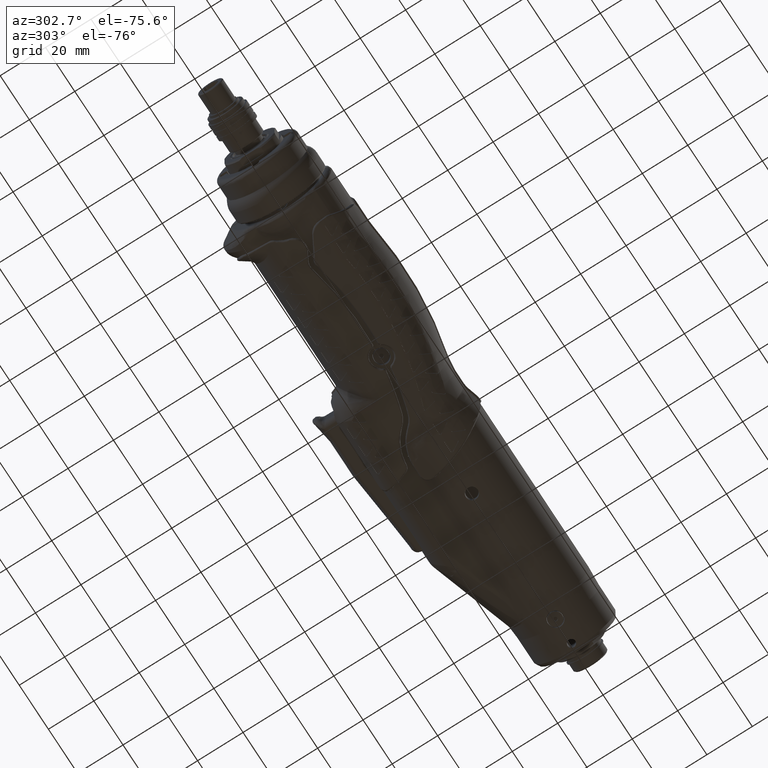
[diagram: clean part render]
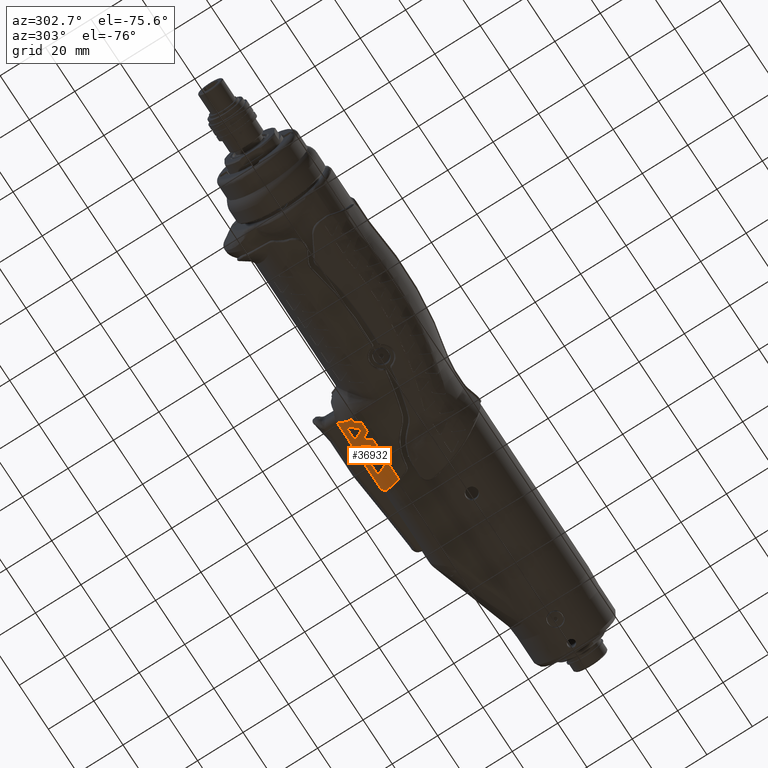
[diagram: same view with one face highlighted and labeled with its STEP entity id]
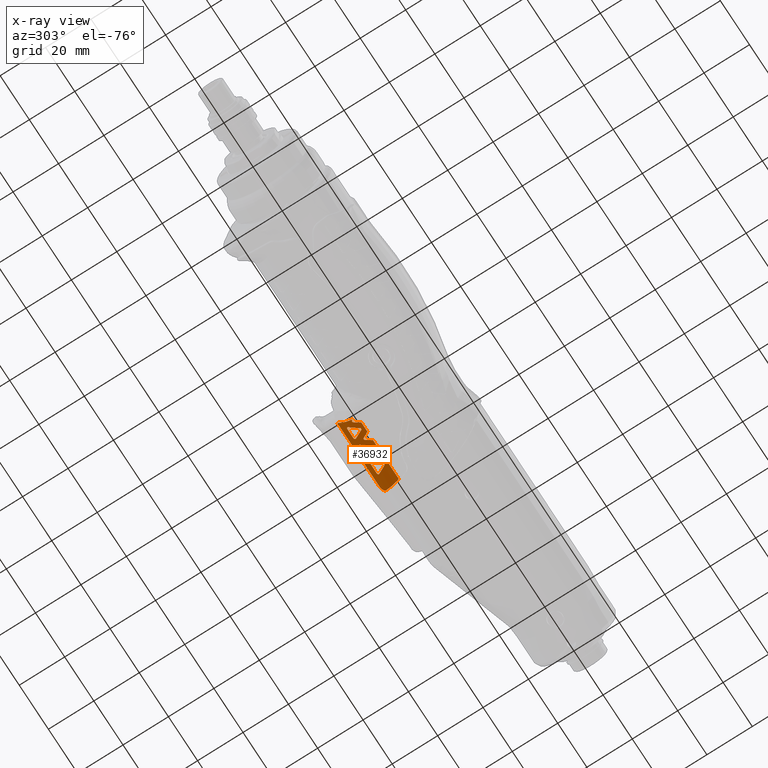
[diagram: x-ray of the same camera — body ghosted, the highlighted face saturated]
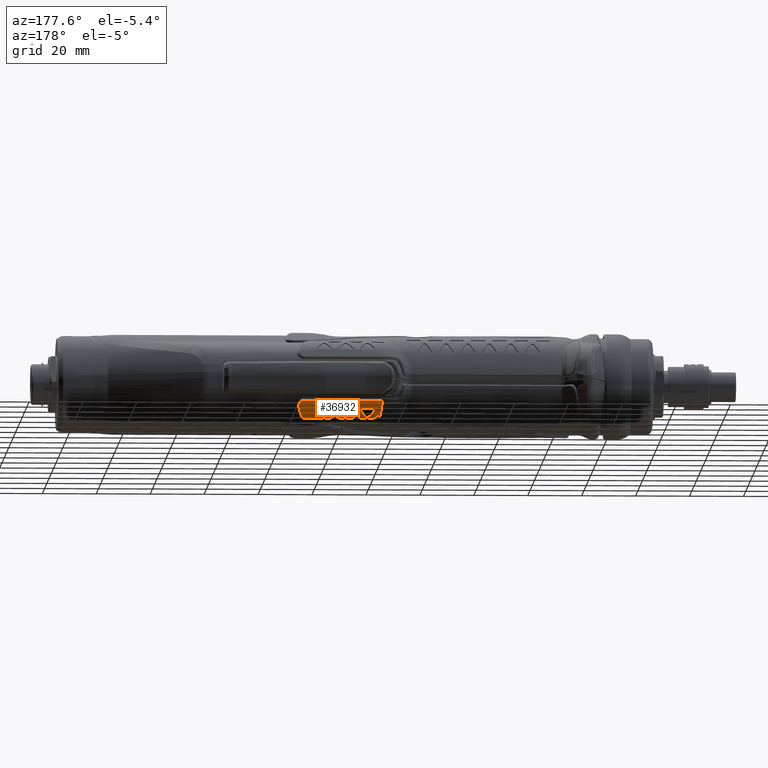
[diagram: same view with one face highlighted and labeled with its STEP entity id]
A machine part, auxiliary view. The second image highlights one B-rep face of the part: STEP entity #36932.
The next image is the same camera in x-ray: the body ghosted, the highlighted face saturated — about 0% of this face is hidden behind the body in this view.
A second angle (auxiliary view) of the same face is appended — the face is thin or edge-on in the first view.
In plain terms, the highlighted cylindrical surface (edge-blend (fillet) strip) has radius 13 mm, axis along (1, 0, 0).
Its self-contained STEP definition (entity closure, byte-faithful):
#98=FACE_BOUND('',#9553,.T.);
#99=FACE_BOUND('',#9554,.T.);
#100=FACE_BOUND('',#9555,.T.);
#1962=LINE('',#65084,#3876);
#1966=LINE('',#65096,#3880);
#1970=LINE('',#65131,#3884);
#1973=LINE('',#65844,#3887);
#1978=LINE('',#66249,#3892);
#1979=LINE('',#66300,#3893);
#1980=LINE('',#66351,#3894);
#3876=VECTOR('',#45804,10.);
#3880=VECTOR('',#45812,10.);
#3884=VECTOR('',#45844,10.);
#3887=VECTOR('',#45915,10.);
#3892=VECTOR('',#45962,10.);
#3893=VECTOR('',#45967,10.);
#3894=VECTOR('',#45972,10.);
#5154=ELLIPSE('',#39985,15.0111069989488,13.0000000000161);
#5155=ELLIPSE('',#39986,15.0111069989488,13.0000000000161);
#5156=ELLIPSE('',#39987,15.0111069989487,13.0000000000161);
#5157=ELLIPSE('',#39988,15.0111069989487,13.0000000000161);
#5158=ELLIPSE('',#39989,15.0111069989487,13.0000000000161);
#5159=ELLIPSE('',#39990,15.0111069989487,13.0000000000161);
#5160=ELLIPSE('',#39991,15.0111069989488,13.0000000000161);
#5161=ELLIPSE('',#39992,15.0111069989488,13.0000000000161);
#5162=ELLIPSE('',#39993,15.0111069989488,13.0000000000161);
#5163=ELLIPSE('',#39994,15.0111069989488,13.0000000000161);
#5164=ELLIPSE('',#39995,15.0111069989488,13.0000000000161);
#5165=ELLIPSE('',#39996,15.0111069989488,13.0000000000161);
#5713=CYLINDRICAL_SURFACE('',#39984,13.0000000000161);
#7188=FACE_OUTER_BOUND('',#9552,.T.);
#9552=EDGE_LOOP('',(#28286,#28287,#28288,#28289,#28290,#28291,#28292,#28293,
#28294,#28295,#28296,#28297,#28298,#28299,#28300,#28301));
#9553=EDGE_LOOP('',(#28302,#28303,#28304,#28305,#28306,#28307));
#9554=EDGE_LOOP('',(#28308,#28309,#28310,#28311,#28312,#28313));
#9555=EDGE_LOOP('',(#28314,#28315,#28316,#28317,#28318,#28319));
#12707=B_SPLINE_CURVE_WITH_KNOTS('',3,(#65765,#65766,#65767,#65768),
 .UNSPECIFIED.,.F.,.F.,(4,4),(-0.742252809148825,0.),.UNSPECIFIED.);
#12710=B_SPLINE_CURVE_WITH_KNOTS('',3,(#65834,#65835,#65836,#65837,#65838,
#65839,#65840,#65841),.UNSPECIFIED.,.F.,.F.,(4,1,1,1,1,4),(0.,0.120436562590243,
0.240873125180485,0.301091406475606,0.361309687770728,0.421527969065849),
 .UNSPECIFIED.);
#12722=B_SPLINE_CURVE_WITH_KNOTS('',3,(#66171,#66172,#66173,#66174,#66175,
#66176,#66177,#66178,#66179,#66180,#66181,#66182,#66183,#66184,#66185),
 .UNSPECIFIED.,.F.,.F.,(4,2,2,3,2,2,4),(-0.0518851692637011,-0.0375597601137826,
-0.0187798800568914,0.,0.0187798800568905,0.0375597601137809,0.0518851692682201),
 .UNSPECIFIED.);
#12723=B_SPLINE_CURVE_WITH_KNOTS('',3,(#66190,#66191,#66192,#66193,#66194,
#66195,#66196,#66197,#66198,#66199,#66200,#66201,#66202,#66203,#66204),
 .UNSPECIFIED.,.F.,.F.,(4,2,2,3,2,2,4),(-0.0518851692636985,-0.0375597601137826,
-0.0187798800568913,0.,0.0187798800568913,0.0375597601137826,0.0518851692682225),
 .UNSPECIFIED.);
#12724=B_SPLINE_CURVE_WITH_KNOTS('',3,(#66207,#66208,#66209,#66210,#66211,
#66212),.UNSPECIFIED.,.F.,.F.,(4,2,4),(0.0979578196995392,0.226581693227468,
0.37014594472201),.UNSPECIFIED.);
#12725=B_SPLINE_CURVE_WITH_KNOTS('',3,(#66216,#66217,#66218,#66219,#66220,
#66221,#66222,#66223,#66224,#66225,#66226,#66227,#66228,#66229,#66230),
 .UNSPECIFIED.,.F.,.F.,(4,2,2,3,2,2,4),(-0.0518851692637037,-0.0375597601137809,
-0.0187798800568905,0.,0.0187798800568905,0.0375597601137809,0.0518851692682212),
 .UNSPECIFIED.);
#12726=B_SPLINE_CURVE_WITH_KNOTS('',3,(#66234,#66235,#66236,#66237,#66238,
#66239,#66240,#66241,#66242,#66243,#66244,#66245,#66246,#66247),
 .UNSPECIFIED.,.F.,.F.,(4,2,2,2,2,2,4),(-0.119695030585074,-0.112699241283489,
-0.0881696896335143,-0.0628027498124121,-0.03743580999131,-0.018717904995655,
0.),.UNSPECIFIED.);
#12727=B_SPLINE_CURVE_WITH_KNOTS('',3,(#66251,#66252,#66253,#66254,#66255,
#66256,#66257,#66258,#66259,#66260,#66261,#66262,#66263,#66264),
 .UNSPECIFIED.,.F.,.F.,(4,2,2,2,2,2,4),(0.,0.018717904995655,0.03743580999131,
0.0628027498124124,0.0881696896335149,0.11269924128349,0.119695030585074),
 .UNSPECIFIED.);
#12728=B_SPLINE_CURVE_WITH_KNOTS('',3,(#66268,#66269,#66270,#66271,#66272,
#66273,#66274,#66275,#66276,#66277,#66278,#66279,#66280,#66281),
 .UNSPECIFIED.,.F.,.F.,(4,2,2,2,2,2,4),(0.104794751886867,0.118534869095912,
0.137294529411322,0.156054189726731,0.174813850042139,0.193573510357547,
0.207313627566592),.UNSPECIFIED.);
#12729=B_SPLINE_CURVE_WITH_KNOTS('',3,(#66285,#66286,#66287,#66288,#66289,
#66290,#66291,#66292,#66293,#66294,#66295,#66296,#66297,#66298),
 .UNSPECIFIED.,.F.,.F.,(4,2,2,2,2,2,4),(-0.119695030585073,-0.112699241283489,
-0.0881696896335143,-0.0628027498124121,-0.03743580999131,-0.018717904995655,
0.),.UNSPECIFIED.);
#12730=B_SPLINE_CURVE_WITH_KNOTS('',3,(#66302,#66303,#66304,#66305,#66306,
#66307,#66308,#66309,#66310,#66311,#66312,#66313,#66314,#66315),
 .UNSPECIFIED.,.F.,.F.,(4,2,2,2,2,2,4),(0.,0.018717904995655,0.03743580999131,
0.0628027498124124,0.0881696896335149,0.11269924128349,0.119695030585075),
 .UNSPECIFIED.);
#12731=B_SPLINE_CURVE_WITH_KNOTS('',3,(#66319,#66320,#66321,#66322,#66323,
#66324,#66325,#66326,#66327,#66328,#66329,#66330,#66331,#66332),
 .UNSPECIFIED.,.F.,.F.,(4,2,2,2,2,2,4),(0.104791928479354,0.118532045688397,
0.137291706003806,0.156051366319215,0.174811026634624,0.193570686950033,
0.207310804159078),.UNSPECIFIED.);
#12732=B_SPLINE_CURVE_WITH_KNOTS('',3,(#66336,#66337,#66338,#66339,#66340,
#66341,#66342,#66343,#66344,#66345,#66346,#66347,#66348,#66349),
 .UNSPECIFIED.,.F.,.F.,(4,2,2,2,2,2,4),(-0.119695030585075,-0.112699241283489,
-0.0881696896335143,-0.0628027498124121,-0.03743580999131,-0.018717904995655,
0.),.UNSPECIFIED.);
#12733=B_SPLINE_CURVE_WITH_KNOTS('',3,(#66353,#66354,#66355,#66356,#66357,
#66358,#66359,#66360,#66361,#66362,#66363,#66364,#66365,#66366),
 .UNSPECIFIED.,.F.,.F.,(4,2,2,2,2,2,4),(0.,0.0187179049956548,0.0374358099913096,
0.0628027498124124,0.0881696896335152,0.11269924128349,0.119695030585074),
 .UNSPECIFIED.);
#12734=B_SPLINE_CURVE_WITH_KNOTS('',3,(#66370,#66371,#66372,#66373,#66374,
#66375,#66376,#66377,#66378,#66379,#66380,#66381,#66382,#66383),
 .UNSPECIFIED.,.F.,.F.,(4,2,2,2,2,2,4),(0.104791928479352,0.118532045688396,
0.137291706003805,0.156051366319214,0.174811026634623,0.193570686950032,
0.207310804159076),.UNSPECIFIED.);
#15820=VERTEX_POINT('',#65081);
#15821=VERTEX_POINT('',#65083);
#15826=VERTEX_POINT('',#65093);
#15827=VERTEX_POINT('',#65095);
#15843=VERTEX_POINT('',#65128);
#15844=VERTEX_POINT('',#65130);
#15855=VERTEX_POINT('',#65764);
#15858=VERTEX_POINT('',#65824);
#15859=VERTEX_POINT('',#65843);
#15872=VERTEX_POINT('',#66168);
#15873=VERTEX_POINT('',#66170);
#15874=VERTEX_POINT('',#66187);
#15875=VERTEX_POINT('',#66189);
#15876=VERTEX_POINT('',#66205);
#15877=VERTEX_POINT('',#66213);
#15878=VERTEX_POINT('',#66215);
#15879=VERTEX_POINT('',#66232);
#15880=VERTEX_POINT('',#66233);
#15881=VERTEX_POINT('',#66248);
#15882=VERTEX_POINT('',#66250);
#15883=VERTEX_POINT('',#66265);
#15884=VERTEX_POINT('',#66267);
#15885=VERTEX_POINT('',#66283);
#15886=VERTEX_POINT('',#66284);
#15887=VERTEX_POINT('',#66299);
#15888=VERTEX_POINT('',#66301);
#15889=VERTEX_POINT('',#66316);
#15890=VERTEX_POINT('',#66318);
#15891=VERTEX_POINT('',#66334);
#15892=VERTEX_POINT('',#66335);
#15893=VERTEX_POINT('',#66350);
#15894=VERTEX_POINT('',#66352);
#15895=VERTEX_POINT('',#66367);
#15896=VERTEX_POINT('',#66369);
#20289=EDGE_CURVE('',#15820,#15821,#1962,.T.);
#20295=EDGE_CURVE('',#15826,#15827,#1966,.T.);
#20313=EDGE_CURVE('',#15843,#15844,#1970,.T.);
#20349=EDGE_CURVE('',#15827,#15855,#12707,.T.);
#20354=EDGE_CURVE('',#15855,#15858,#12710,.T.);
#20355=EDGE_CURVE('',#15858,#15859,#1973,.T.);
#20382=EDGE_CURVE('',#15820,#15872,#5154,.T.);
#20383=EDGE_CURVE('',#15872,#15873,#12722,.T.);
#20384=EDGE_CURVE('',#15873,#15844,#5155,.T.);
#20385=EDGE_CURVE('',#15843,#15874,#5156,.T.);
#20386=EDGE_CURVE('',#15874,#15875,#12723,.T.);
#20387=EDGE_CURVE('',#15875,#15876,#5157,.T.);
#20388=EDGE_CURVE('',#15859,#15876,#12724,.T.);
#20389=EDGE_CURVE('',#15826,#15877,#5158,.T.);
#20390=EDGE_CURVE('',#15877,#15878,#12725,.T.);
#20391=EDGE_CURVE('',#15878,#15821,#5159,.T.);
#20392=EDGE_CURVE('',#15879,#15880,#12726,.T.);
#20393=EDGE_CURVE('',#15880,#15881,#1978,.T.);
#20394=EDGE_CURVE('',#15881,#15882,#12727,.T.);
#20395=EDGE_CURVE('',#15882,#15883,#5160,.T.);
#20396=EDGE_CURVE('',#15883,#15884,#12728,.T.);
#20397=EDGE_CURVE('',#15884,#15879,#5161,.T.);
#20398=EDGE_CURVE('',#15885,#15886,#12729,.T.);
#20399=EDGE_CURVE('',#15886,#15887,#1979,.T.);
#20400=EDGE_CURVE('',#15887,#15888,#12730,.T.);
#20401=EDGE_CURVE('',#15888,#15889,#5162,.T.);
#20402=EDGE_CURVE('',#15889,#15890,#12731,.T.);
#20403=EDGE_CURVE('',#15890,#15885,#5163,.T.);
#20404=EDGE_CURVE('',#15891,#15892,#12732,.T.);
#20405=EDGE_CURVE('',#15892,#15893,#1980,.T.);
#20406=EDGE_CURVE('',#15893,#15894,#12733,.T.);
#20407=EDGE_CURVE('',#15894,#15895,#5164,.T.);
#20408=EDGE_CURVE('',#15895,#15896,#12734,.T.);
#20409=EDGE_CURVE('',#15896,#15891,#5165,.T.);
#28286=ORIENTED_EDGE('',*,*,#20382,.T.);
#28287=ORIENTED_EDGE('',*,*,#20383,.T.);
#28288=ORIENTED_EDGE('',*,*,#20384,.T.);
#28289=ORIENTED_EDGE('',*,*,#20313,.F.);
#28290=ORIENTED_EDGE('',*,*,#20385,.T.);
#28291=ORIENTED_EDGE('',*,*,#20386,.T.);
#28292=ORIENTED_EDGE('',*,*,#20387,.T.);
#28293=ORIENTED_EDGE('',*,*,#20388,.F.);
#28294=ORIENTED_EDGE('',*,*,#20355,.F.);
#28295=ORIENTED_EDGE('',*,*,#20354,.F.);
#28296=ORIENTED_EDGE('',*,*,#20349,.F.);
#28297=ORIENTED_EDGE('',*,*,#20295,.F.);
#28298=ORIENTED_EDGE('',*,*,#20389,.T.);
#28299=ORIENTED_EDGE('',*,*,#20390,.T.);
#28300=ORIENTED_EDGE('',*,*,#20391,.T.);
#28301=ORIENTED_EDGE('',*,*,#20289,.F.);
#28302=ORIENTED_EDGE('',*,*,#20392,.T.);
#28303=ORIENTED_EDGE('',*,*,#20393,.T.);
#28304=ORIENTED_EDGE('',*,*,#20394,.T.);
#28305=ORIENTED_EDGE('',*,*,#20395,.T.);
#28306=ORIENTED_EDGE('',*,*,#20396,.T.);
#28307=ORIENTED_EDGE('',*,*,#20397,.T.);
#28308=ORIENTED_EDGE('',*,*,#20398,.T.);
#28309=ORIENTED_EDGE('',*,*,#20399,.T.);
#28310=ORIENTED_EDGE('',*,*,#20400,.T.);
#28311=ORIENTED_EDGE('',*,*,#20401,.T.);
#28312=ORIENTED_EDGE('',*,*,#20402,.T.);
#28313=ORIENTED_EDGE('',*,*,#20403,.T.);
#28314=ORIENTED_EDGE('',*,*,#20404,.T.);
#28315=ORIENTED_EDGE('',*,*,#20405,.T.);
#28316=ORIENTED_EDGE('',*,*,#20406,.T.);
#28317=ORIENTED_EDGE('',*,*,#20407,.T.);
#28318=ORIENTED_EDGE('',*,*,#20408,.T.);
#28319=ORIENTED_EDGE('',*,*,#20409,.T.);
#36932=ADVANCED_FACE('',(#7188,#98,#99,#100),#5713,.T.);
#39984=AXIS2_PLACEMENT_3D('',#66167,#45948,#45949);
#39985=AXIS2_PLACEMENT_3D('',#66169,#45950,#45951);
#39986=AXIS2_PLACEMENT_3D('',#66186,#45952,#45953);
#39987=AXIS2_PLACEMENT_3D('',#66188,#45954,#45955);
#39988=AXIS2_PLACEMENT_3D('',#66206,#45956,#45957);
#39989=AXIS2_PLACEMENT_3D('',#66214,#45958,#45959);
#39990=AXIS2_PLACEMENT_3D('',#66231,#45960,#45961);
#39991=AXIS2_PLACEMENT_3D('',#66266,#45963,#45964);
#39992=AXIS2_PLACEMENT_3D('',#66282,#45965,#45966);
#39993=AXIS2_PLACEMENT_3D('',#66317,#45968,#45969);
#39994=AXIS2_PLACEMENT_3D('',#66333,#45970,#45971);
#39995=AXIS2_PLACEMENT_3D('',#66368,#45973,#45974);
#39996=AXIS2_PLACEMENT_3D('',#66384,#45975,#45976);
#45804=DIRECTION('',(1.,0.,0.));
#45812=DIRECTION('',(1.,0.,0.));
#45844=DIRECTION('',(1.,0.,0.));
#45915=DIRECTION('',(-1.,0.,0.));
#45948=DIRECTION('center_axis',(1.,0.,0.));
#45949=DIRECTION('ref_axis',(0.,-0.207911690853884,0.978147600726127));
#45950=DIRECTION('center_axis',(0.866025403784444,0.499999999999991,0.));
#45951=DIRECTION('ref_axis',(0.499999999999991,-0.866025403784444,-3.69800516611769E-17));
#45952=DIRECTION('center_axis',(-0.866025403784443,0.499999999999992,0.));
#45953=DIRECTION('ref_axis',(-0.499999999999992,-0.866025403784443,-3.69800516611768E-17));
#45954=DIRECTION('center_axis',(0.86602540378445,0.499999999999981,0.));
#45955=DIRECTION('ref_axis',(0.499999999999981,-0.86602540378445,-3.69800516611771E-17));
#45956=DIRECTION('center_axis',(-0.866025403784447,0.499999999999986,0.));
#45957=DIRECTION('ref_axis',(-0.499999999999986,-0.866025403784447,-3.6980051661177E-17));
#45958=DIRECTION('center_axis',(0.866025403784448,0.499999999999984,0.));
#45959=DIRECTION('ref_axis',(0.499999999999984,-0.866025403784448,-3.6980051661177E-17));
#45960=DIRECTION('center_axis',(-0.866025403784448,0.499999999999984,0.));
#45961=DIRECTION('ref_axis',(-0.499999999999984,-0.866025403784448,-3.6980051661177E-17));
#45962=DIRECTION('',(-1.,0.,0.));
#45963=DIRECTION('center_axis',(-0.866025403784442,-0.499999999999994,0.));
#45964=DIRECTION('ref_axis',(0.499999999999994,-0.866025403784442,1.47920206644707E-16));
#45965=DIRECTION('center_axis',(0.866025403784443,-0.499999999999992,0.));
#45966=DIRECTION('ref_axis',(-0.499999999999992,-0.866025403784443,-3.69800516611768E-17));
#45967=DIRECTION('',(-1.,0.,0.));
#45968=DIRECTION('center_axis',(-0.866025403784441,-0.499999999999996,0.));
#45969=DIRECTION('ref_axis',(0.499999999999996,-0.866025403784441,-3.69800516611767E-17));
#45970=DIRECTION('center_axis',(0.866025403784443,-0.499999999999992,0.));
#45971=DIRECTION('ref_axis',(-0.499999999999992,-0.866025403784443,-3.69800516611768E-17));
#45972=DIRECTION('',(-1.,0.,0.));
#45973=DIRECTION('center_axis',(-0.866025403784443,-0.499999999999992,0.));
#45974=DIRECTION('ref_axis',(0.499999999999992,-0.866025403784443,-3.69800516611768E-17));
#45975=DIRECTION('center_axis',(0.866025403784441,-0.499999999999996,0.));
#45976=DIRECTION('ref_axis',(-0.499999999999996,-0.866025403784441,-3.69800516611767E-17));
#65081=CARTESIAN_POINT('',(93.9193867086727,20.3716661877115,-14.21871988161));
#65083=CARTESIAN_POINT('',(98.0806132913292,20.3716661877115,-14.21871988161));
#65084=CARTESIAN_POINT('',(48.,20.3716661877115,-14.21871988161));
#65093=CARTESIAN_POINT('',(101.919386708673,20.3716661877115,-14.21871988161));
#65095=CARTESIAN_POINT('',(111.614878326556,20.3716661877086,-14.2187198815942));
#65096=CARTESIAN_POINT('',(48.,20.3716661877115,-14.21871988161));
#65128=CARTESIAN_POINT('',(85.9193867086727,20.3716661877115,-14.21871988161));
#65130=CARTESIAN_POINT('',(90.0806132913292,20.3716661877115,-14.21871988161));
#65131=CARTESIAN_POINT('',(48.,20.3716661877115,-14.21871988161));
#65764=CARTESIAN_POINT('',(113.496403439984,26.8830877987711,-10.6732515610253));
#65765=CARTESIAN_POINT('Ctrl Pts',(111.614878326556,20.371666187709,-14.2187198815941));
#65766=CARTESIAN_POINT('Ctrl Pts',(112.434368077911,22.7656634969356,-13.709860044805));
#65767=CARTESIAN_POINT('Ctrl Pts',(113.068886919676,25.0808276423121,-12.4841242314573));
#65768=CARTESIAN_POINT('Ctrl Pts',(113.496403439984,26.8830877987711,-10.6732515610253));
#65824=CARTESIAN_POINT('',(111.47222585727,28.8366253597478,-8.15712252876704));
#65834=CARTESIAN_POINT('Ctrl Pts',(113.496403439984,26.8830877987711,-10.6732515610253));
#65835=CARTESIAN_POINT('Ctrl Pts',(113.565771476752,27.1755191853039,-10.379422723967));
#65836=CARTESIAN_POINT('Ctrl Pts',(113.601045481496,27.7489530594298,-9.74611860325655));
#65837=CARTESIAN_POINT('Ctrl Pts',(113.220788738242,28.347028950615,-8.93083823272152));
#65838=CARTESIAN_POINT('Ctrl Pts',(112.625552890721,28.6644128862635,-8.44081573615646));
#65839=CARTESIAN_POINT('Ctrl Pts',(112.075437650129,28.806693397243,-8.20805495137111));
#65840=CARTESIAN_POINT('Ctrl Pts',(111.672953461587,28.8366253597478,-8.15712252876711));
#65841=CARTESIAN_POINT('Ctrl Pts',(111.47222585727,28.8366253597478,-8.15712252876711));
#65843=CARTESIAN_POINT('',(82.5645679928106,28.8366253597478,-8.15712252876704));
#65844=CARTESIAN_POINT('',(48.,28.8366253597478,-8.15712252876704));
#66167=CARTESIAN_POINT('Origin',(48.,17.6688142066043,-1.5028010721389));
#66168=CARTESIAN_POINT('',(92.4330127018932,22.9461414865034,-13.3834499088503));
#66169=CARTESIAN_POINT('Origin',(95.4798790275446,17.6688142066043,-1.5028010721389));
#66170=CARTESIAN_POINT('',(91.5669872981087,22.9461414865034,-13.3834499088503));
#66171=CARTESIAN_POINT('Ctrl Pts',(92.4330127018932,22.9461414865034,-13.3834499088503));
#66172=CARTESIAN_POINT('Ctrl Pts',(92.4094303620645,22.9869872972481,-13.3653063954551));
#66173=CARTESIAN_POINT('Ctrl Pts',(92.3800220239736,23.0242514592084,-13.3484964524194));
#66174=CARTESIAN_POINT('Ctrl Pts',(92.3043235695296,23.0973267455882,-13.3152236140067));
#66175=CARTESIAN_POINT('Ctrl Pts',(92.2497129754869,23.1342114413102,-13.2981466146282));
#66176=CARTESIAN_POINT('Ctrl Pts',(92.1288653570798,23.1836407868648,-13.2751173775063));
#66177=CARTESIAN_POINT('Ctrl Pts',(92.0625996001906,23.1961414865034,-13.2692216468635));
#66178=CARTESIAN_POINT('Ctrl Pts',(92.000000000001,23.1961414865034,-13.2692216468635));
#66179=CARTESIAN_POINT('Ctrl Pts',(91.9374003998113,23.1961414865034,-13.2692216468635));
#66180=CARTESIAN_POINT('Ctrl Pts',(91.8711346429222,23.1836407868648,-13.2751173775063));
#66181=CARTESIAN_POINT('Ctrl Pts',(91.750287024515,23.1342114413102,-13.2981466146282));
#66182=CARTESIAN_POINT('Ctrl Pts',(91.6956764304723,23.0973267455882,-13.3152236140067));
#66183=CARTESIAN_POINT('Ctrl Pts',(91.619977976018,23.0242514591984,-13.348496452424));
#66184=CARTESIAN_POINT('Ctrl Pts',(91.590569637947,22.9869872972647,-13.3653063954477));
#66185=CARTESIAN_POINT('Ctrl Pts',(91.5669872981087,22.9461414865034,-13.3834499088503));
#66186=CARTESIAN_POINT('Origin',(88.5201209724573,17.6688142066043,-1.5028010721389));
#66187=CARTESIAN_POINT('',(84.4330127018932,22.9461414865034,-13.3834499088503));
#66188=CARTESIAN_POINT('Origin',(87.4798790275446,17.6688142066043,-1.5028010721389));
#66189=CARTESIAN_POINT('',(83.5669872981087,22.9461414865034,-13.3834499088503));
#66190=CARTESIAN_POINT('Ctrl Pts',(84.4330127018932,22.9461414865034,-13.3834499088503));
#66191=CARTESIAN_POINT('Ctrl Pts',(84.4094303620645,22.9869872972481,-13.3653063954551));
#66192=CARTESIAN_POINT('Ctrl Pts',(84.3800220239736,23.0242514592084,-13.3484964524194));
#66193=CARTESIAN_POINT('Ctrl Pts',(84.3043235695296,23.0973267455882,-13.3152236140067));
#66194=CARTESIAN_POINT('Ctrl Pts',(84.2497129754869,23.1342114413102,-13.2981466146282));
#66195=CARTESIAN_POINT('Ctrl Pts',(84.1288653570797,23.1836407868648,-13.2751173775063));
#66196=CARTESIAN_POINT('Ctrl Pts',(84.0625996001906,23.1961414865034,-13.2692216468635));
#66197=CARTESIAN_POINT('Ctrl Pts',(84.000000000001,23.1961414865034,-13.2692216468635));
#66198=CARTESIAN_POINT('Ctrl Pts',(83.9374003998113,23.1961414865034,-13.2692216468635));
#66199=CARTESIAN_POINT('Ctrl Pts',(83.8711346429222,23.1836407868648,-13.2751173775063));
#66200=CARTESIAN_POINT('Ctrl Pts',(83.750287024515,23.1342114413102,-13.2981466146282));
#66201=CARTESIAN_POINT('Ctrl Pts',(83.6956764304723,23.0973267455882,-13.3152236140067));
#66202=CARTESIAN_POINT('Ctrl Pts',(83.619977976018,23.0242514591984,-13.348496452424));
#66203=CARTESIAN_POINT('Ctrl Pts',(83.590569637947,22.9869872972647,-13.3653063954477));
#66204=CARTESIAN_POINT('Ctrl Pts',(83.5669872981087,22.9461414865034,-13.3834499088503));
#66205=CARTESIAN_POINT('',(83.3075279534903,22.4967447191388,-13.5730573646343));
#66206=CARTESIAN_POINT('Origin',(80.5201209724573,17.6688142066043,-1.5028010721389));
#66207=CARTESIAN_POINT('Ctrl Pts',(82.5645679928108,28.8366253597479,-8.15712252876701));
#66208=CARTESIAN_POINT('Ctrl Pts',(82.7067934257745,28.1638627890443,-9.28620614600599));
#66209=CARTESIAN_POINT('Ctrl Pts',(82.8538245946699,27.322777222641,-10.3096697481084));
#66210=CARTESIAN_POINT('Ctrl Pts',(83.130694780483,25.2299821298579,-12.1808756094811));
#66211=CARTESIAN_POINT('Ctrl Pts',(83.2582137379611,23.9306765455875,-12.9995050679781));
#66212=CARTESIAN_POINT('Ctrl Pts',(83.3075279534847,22.4967447191391,-13.5730573646355));
#66213=CARTESIAN_POINT('',(100.433012701893,22.9461414865034,-13.3834499088503));
#66214=CARTESIAN_POINT('Origin',(103.479879027545,17.6688142066043,-1.5028010721389));
#66215=CARTESIAN_POINT('',(99.5669872981087,22.9461414865034,-13.3834499088503));
#66216=CARTESIAN_POINT('Ctrl Pts',(100.433012701893,22.9461414865034,-13.3834499088503));
#66217=CARTESIAN_POINT('Ctrl Pts',(100.409430362064,22.9869872972481,-13.3653063954551));
#66218=CARTESIAN_POINT('Ctrl Pts',(100.380022023974,23.0242514592083,-13.3484964524194));
#66219=CARTESIAN_POINT('Ctrl Pts',(100.30432356953,23.0973267455882,-13.3152236140067));
#66220=CARTESIAN_POINT('Ctrl Pts',(100.249712975487,23.1342114413102,-13.2981466146282));
#66221=CARTESIAN_POINT('Ctrl Pts',(100.12886535708,23.1836407868648,-13.2751173775063));
#66222=CARTESIAN_POINT('Ctrl Pts',(100.062599600191,23.1961414865034,-13.2692216468635));
#66223=CARTESIAN_POINT('Ctrl Pts',(100.000000000001,23.1961414865034,-13.2692216468635));
#66224=CARTESIAN_POINT('Ctrl Pts',(99.9374003998113,23.1961414865034,-13.2692216468635));
#66225=CARTESIAN_POINT('Ctrl Pts',(99.8711346429222,23.1836407868648,-13.2751173775063));
#66226=CARTESIAN_POINT('Ctrl Pts',(99.750287024515,23.1342114413102,-13.2981466146282));
#66227=CARTESIAN_POINT('Ctrl Pts',(99.6956764304723,23.0973267455882,-13.3152236140067));
#66228=CARTESIAN_POINT('Ctrl Pts',(99.619977976018,23.0242514591984,-13.348496452424));
#66229=CARTESIAN_POINT('Ctrl Pts',(99.590569637947,22.9869872972647,-13.3653063954477));
#66230=CARTESIAN_POINT('Ctrl Pts',(99.5669872981087,22.9461414865034,-13.3834499088503));
#66231=CARTESIAN_POINT('Origin',(96.5201209724573,17.6688142066043,-1.5028010721389));
#66232=CARTESIAN_POINT('',(106.566987298108,25.7499890637971,-11.6858562584714));
#66233=CARTESIAN_POINT('',(106.133974596216,26.4999890637971,-11.0427355919406));
#66234=CARTESIAN_POINT('Ctrl Pts',(106.566987298108,25.7499890637971,-11.6858562584714));
#66235=CARTESIAN_POINT('Ctrl Pts',(106.577164306961,25.7676161601989,-11.6718675639548));
#66236=CARTESIAN_POINT('Ctrl Pts',(106.586193745178,25.7857484302435,-11.6574028435667));
#66237=CARTESIAN_POINT('Ctrl Pts',(106.621542387804,25.8688013281048,-11.5907679391066));
#66238=CARTESIAN_POINT('Ctrl Pts',(106.633974596216,25.9372213666087,-11.5347564438592));
#66239=CARTESIAN_POINT('Ctrl Pts',(106.633974596216,26.0648995203765,-11.4281676245757));
#66240=CARTESIAN_POINT('Ctrl Pts',(106.620731889952,26.1344099863253,-11.3689592181015));
#66241=CARTESIAN_POINT('Ctrl Pts',(106.56435681706,26.2641344604629,-11.2561521987555));
#66242=CARTESIAN_POINT('Ctrl Pts',(106.521298767969,26.324385793739,-11.2025593839116));
#66243=CARTESIAN_POINT('Ctrl Pts',(106.427404839879,26.4083503734181,-11.1268756333465));
#66244=CARTESIAN_POINT('Ctrl Pts',(106.376380540315,26.4416884341937,-11.0964264942691));
#66245=CARTESIAN_POINT('Ctrl Pts',(106.260924603266,26.4875776903912,-11.0542607277345));
#66246=CARTESIAN_POINT('Ctrl Pts',(106.196367612868,26.4999890637971,-11.0427355919406));
#66247=CARTESIAN_POINT('Ctrl Pts',(106.133974596216,26.4999890637971,-11.0427355919406));
#66248=CARTESIAN_POINT('',(101.866025403786,26.4999890637971,-11.0427355919406));
#66249=CARTESIAN_POINT('',(48.,26.4999890637971,-11.0427355919406));
#66250=CARTESIAN_POINT('',(101.433012701893,25.7499890637971,-11.6858562584714));
#66251=CARTESIAN_POINT('Ctrl Pts',(101.866025403786,26.4999890637971,-11.0427355919406));
#66252=CARTESIAN_POINT('Ctrl Pts',(101.803632387134,26.4999890637971,-11.0427355919406));
#66253=CARTESIAN_POINT('Ctrl Pts',(101.739075396736,26.4875776903912,-11.0542607277345));
#66254=CARTESIAN_POINT('Ctrl Pts',(101.623619459687,26.4416884341937,-11.0964264942691));
#66255=CARTESIAN_POINT('Ctrl Pts',(101.572595160123,26.4083503734181,-11.1268756333465));
#66256=CARTESIAN_POINT('Ctrl Pts',(101.478701232033,26.324385793739,-11.2025593839116));
#66257=CARTESIAN_POINT('Ctrl Pts',(101.435643182942,26.2641344604629,-11.2561521987555));
#66258=CARTESIAN_POINT('Ctrl Pts',(101.37926811005,26.1344099863253,-11.3689592181015));
#66259=CARTESIAN_POINT('Ctrl Pts',(101.366025403786,26.0648995203765,-11.4281676245757));
#66260=CARTESIAN_POINT('Ctrl Pts',(101.366025403786,25.9372213666087,-11.5347564438592));
#66261=CARTESIAN_POINT('Ctrl Pts',(101.378457612198,25.8688013281048,-11.5907679391066));
#66262=CARTESIAN_POINT('Ctrl Pts',(101.413806254823,25.7857484302435,-11.6574028435667));
#66263=CARTESIAN_POINT('Ctrl Pts',(101.422835693041,25.7676161601989,-11.6718675639548));
#66264=CARTESIAN_POINT('Ctrl Pts',(101.433012701893,25.7499890637971,-11.6858562584714));
#66265=CARTESIAN_POINT('',(103.566987298109,22.0538366410909,-13.7409209542722));
#66266=CARTESIAN_POINT('Origin',(106.098681181062,17.6688142066043,-1.5028010721389));
#66267=CARTESIAN_POINT('',(104.433012701893,22.0538366410909,-13.7409209542722));
#66268=CARTESIAN_POINT('Ctrl Pts',(103.566987298109,22.0538366410909,-13.7409209542722));
#66269=CARTESIAN_POINT('Ctrl Pts',(103.59010202998,22.0138007510864,-13.7552661541514));
#66270=CARTESIAN_POINT('Ctrl Pts',(103.61881297495,21.9772225503612,-13.7681466303763));
#66271=CARTESIAN_POINT('Ctrl Pts',(103.694116268303,21.9036783702781,-13.7937711893196));
#66272=CARTESIAN_POINT('Ctrl Pts',(103.749336253542,21.8662385907782,-13.8065534847353));
#66273=CARTESIAN_POINT('Ctrl Pts',(103.871009013533,21.8163064387998,-13.8234748796094));
#66274=CARTESIAN_POINT('Ctrl Pts',(103.93746779895,21.8038366410909,-13.8276373577336));
#66275=CARTESIAN_POINT('Ctrl Pts',(104.062532201052,21.8038366410909,-13.8276373577336));
#66276=CARTESIAN_POINT('Ctrl Pts',(104.128990986469,21.8163064387998,-13.8234748796094));
#66277=CARTESIAN_POINT('Ctrl Pts',(104.25066374646,21.8662385907782,-13.8065534847353));
#66278=CARTESIAN_POINT('Ctrl Pts',(104.305883731699,21.9036783702781,-13.7937711893196));
#66279=CARTESIAN_POINT('Ctrl Pts',(104.381187025052,21.9772225503612,-13.7681466303763));
#66280=CARTESIAN_POINT('Ctrl Pts',(104.409897970022,22.0138007510864,-13.7552661541514));
#66281=CARTESIAN_POINT('Ctrl Pts',(104.433012701893,22.0538366410909,-13.7409209542722));
#66282=CARTESIAN_POINT('Origin',(101.90131881894,17.6688142066043,-1.5028010721389));
#66283=CARTESIAN_POINT('',(98.5669872981085,25.7499890637971,-11.6858562584714));
#66284=CARTESIAN_POINT('',(98.1339745962162,26.4999890637971,-11.0427355919406));
#66285=CARTESIAN_POINT('Ctrl Pts',(98.5669872981085,25.7499890637971,-11.6858562584714));
#66286=CARTESIAN_POINT('Ctrl Pts',(98.577164306961,25.7676161601988,-11.6718675639548));
#66287=CARTESIAN_POINT('Ctrl Pts',(98.5861937451784,25.7857484302435,-11.6574028435667));
#66288=CARTESIAN_POINT('Ctrl Pts',(98.6215423878044,25.8688013281048,-11.5907679391066));
#66289=CARTESIAN_POINT('Ctrl Pts',(98.6339745962162,25.9372213666087,-11.5347564438592));
#66290=CARTESIAN_POINT('Ctrl Pts',(98.6339745962162,26.0648995203765,-11.4281676245757));
#66291=CARTESIAN_POINT('Ctrl Pts',(98.6207318899523,26.1344099863253,-11.3689592181015));
#66292=CARTESIAN_POINT('Ctrl Pts',(98.5643568170603,26.2641344604629,-11.2561521987555));
#66293=CARTESIAN_POINT('Ctrl Pts',(98.5212987679692,26.324385793739,-11.2025593839116));
#66294=CARTESIAN_POINT('Ctrl Pts',(98.4274048398794,26.4083503734181,-11.1268756333465));
#66295=CARTESIAN_POINT('Ctrl Pts',(98.3763805403154,26.4416884341937,-11.0964264942691));
#66296=CARTESIAN_POINT('Ctrl Pts',(98.2609246032659,26.4875776903912,-11.0542607277345));
#66297=CARTESIAN_POINT('Ctrl Pts',(98.1963676128684,26.4999890637971,-11.0427355919406));
#66298=CARTESIAN_POINT('Ctrl Pts',(98.1339745962162,26.4999890637971,-11.0427355919406));
#66299=CARTESIAN_POINT('',(93.8660254037857,26.4999890637971,-11.0427355919406));
#66300=CARTESIAN_POINT('',(48.,26.4999890637971,-11.0427355919406));
#66301=CARTESIAN_POINT('',(93.4330127018934,25.7499890637971,-11.6858562584714));
#66302=CARTESIAN_POINT('Ctrl Pts',(93.8660254037857,26.4999890637971,-11.0427355919406));
#66303=CARTESIAN_POINT('Ctrl Pts',(93.8036323871335,26.4999890637971,-11.0427355919406));
#66304=CARTESIAN_POINT('Ctrl Pts',(93.7390753967359,26.4875776903912,-11.0542607277345));
#66305=CARTESIAN_POINT('Ctrl Pts',(93.6236194596865,26.4416884341937,-11.0964264942691));
#66306=CARTESIAN_POINT('Ctrl Pts',(93.5725951601225,26.4083503734181,-11.1268756333465));
#66307=CARTESIAN_POINT('Ctrl Pts',(93.4787012320327,26.324385793739,-11.2025593839116));
#66308=CARTESIAN_POINT('Ctrl Pts',(93.4356431829416,26.2641344604629,-11.2561521987555));
#66309=CARTESIAN_POINT('Ctrl Pts',(93.3792681100496,26.1344099863253,-11.3689592181015));
#66310=CARTESIAN_POINT('Ctrl Pts',(93.3660254037857,26.0648995203765,-11.4281676245757));
#66311=CARTESIAN_POINT('Ctrl Pts',(93.3660254037857,25.9372213666087,-11.5347564438592));
#66312=CARTESIAN_POINT('Ctrl Pts',(93.3784576121975,25.8688013281048,-11.5907679391066));
#66313=CARTESIAN_POINT('Ctrl Pts',(93.4138062548235,25.7857484302435,-11.6574028435667));
#66314=CARTESIAN_POINT('Ctrl Pts',(93.4228356930409,25.7676161601989,-11.6718675639548));
#66315=CARTESIAN_POINT('Ctrl Pts',(93.4330127018934,25.7499890637971,-11.6858562584714));
#66316=CARTESIAN_POINT('',(95.5669872981087,22.0538366410909,-13.7409209542722));
#66317=CARTESIAN_POINT('Origin',(98.0986811810621,17.6688142066043,-1.5028010721389));
#66318=CARTESIAN_POINT('',(96.4330127018932,22.0538366410909,-13.7409209542722));
#66319=CARTESIAN_POINT('Ctrl Pts',(95.5669872981087,22.0538366410909,-13.7409209542722));
#66320=CARTESIAN_POINT('Ctrl Pts',(95.59010202998,22.0138007510864,-13.7552661541514));
#66321=CARTESIAN_POINT('Ctrl Pts',(95.6188129749504,21.9772225503612,-13.7681466303763));
#66322=CARTESIAN_POINT('Ctrl Pts',(95.6941162683029,21.9036783702781,-13.7937711893196));
#66323=CARTESIAN_POINT('Ctrl Pts',(95.7493362535416,21.8662385907782,-13.8065534847353));
#66324=CARTESIAN_POINT('Ctrl Pts',(95.8710090135328,21.8163064387998,-13.8234748796094));
#66325=CARTESIAN_POINT('Ctrl Pts',(95.9374677989496,21.8038366410909,-13.8276373577336));
#66326=CARTESIAN_POINT('Ctrl Pts',(96.0625322010523,21.8038366410909,-13.8276373577336));
#66327=CARTESIAN_POINT('Ctrl Pts',(96.1289909864691,21.8163064387998,-13.8234748796094));
#66328=CARTESIAN_POINT('Ctrl Pts',(96.2506637464603,21.8662385907782,-13.8065534847353));
#66329=CARTESIAN_POINT('Ctrl Pts',(96.305883731699,21.9036783702781,-13.7937711893196));
#66330=CARTESIAN_POINT('Ctrl Pts',(96.3811870250515,21.9772225503612,-13.7681466303763));
#66331=CARTESIAN_POINT('Ctrl Pts',(96.4098979700219,22.0138007510864,-13.7552661541514));
#66332=CARTESIAN_POINT('Ctrl Pts',(96.4330127018932,22.0538366410909,-13.7409209542722));
#66333=CARTESIAN_POINT('Origin',(93.9013188189399,17.6688142066043,-1.5028010721389));
#66334=CARTESIAN_POINT('',(90.5669872981085,25.7499890637971,-11.6858562584714));
#66335=CARTESIAN_POINT('',(90.1339745962162,26.4999890637971,-11.0427355919406));
#66336=CARTESIAN_POINT('Ctrl Pts',(90.5669872981085,25.7499890637971,-11.6858562584714));
#66337=CARTESIAN_POINT('Ctrl Pts',(90.5771643069611,25.7676161601989,-11.6718675639548));
#66338=CARTESIAN_POINT('Ctrl Pts',(90.5861937451784,25.7857484302435,-11.6574028435667));
#66339=CARTESIAN_POINT('Ctrl Pts',(90.6215423878044,25.8688013281048,-11.5907679391066));
#66340=CARTESIAN_POINT('Ctrl Pts',(90.6339745962162,25.9372213666087,-11.5347564438592));
#66341=CARTESIAN_POINT('Ctrl Pts',(90.6339745962162,26.0648995203765,-11.4281676245757));
#66342=CARTESIAN_POINT('Ctrl Pts',(90.6207318899523,26.1344099863253,-11.3689592181015));
#66343=CARTESIAN_POINT('Ctrl Pts',(90.5643568170603,26.2641344604629,-11.2561521987555));
#66344=CARTESIAN_POINT('Ctrl Pts',(90.5212987679692,26.324385793739,-11.2025593839116));
#66345=CARTESIAN_POINT('Ctrl Pts',(90.4274048398794,26.4083503734181,-11.1268756333465));
#66346=CARTESIAN_POINT('Ctrl Pts',(90.3763805403154,26.4416884341937,-11.0964264942691));
#66347=CARTESIAN_POINT('Ctrl Pts',(90.260924603266,26.4875776903912,-11.0542607277345));
#66348=CARTESIAN_POINT('Ctrl Pts',(90.1963676128684,26.4999890637971,-11.0427355919406));
#66349=CARTESIAN_POINT('Ctrl Pts',(90.1339745962162,26.4999890637971,-11.0427355919406));
#66350=CARTESIAN_POINT('',(85.8660254037857,26.4999890637971,-11.0427355919406));
#66351=CARTESIAN_POINT('',(48.,26.4999890637971,-11.0427355919406));
#66352=CARTESIAN_POINT('',(85.4330127018934,25.7499890637971,-11.6858562584714));
#66353=CARTESIAN_POINT('Ctrl Pts',(85.8660254037857,26.4999890637971,-11.0427355919406));
#66354=CARTESIAN_POINT('Ctrl Pts',(85.8036323871335,26.4999890637972,-11.0427355919406));
#66355=CARTESIAN_POINT('Ctrl Pts',(85.739075396736,26.4875776903912,-11.0542607277345));
#66356=CARTESIAN_POINT('Ctrl Pts',(85.6236194596865,26.4416884341937,-11.0964264942691));
#66357=CARTESIAN_POINT('Ctrl Pts',(85.5725951601225,26.4083503734181,-11.1268756333465));
#66358=CARTESIAN_POINT('Ctrl Pts',(85.4787012320327,26.3243857937391,-11.2025593839115));
#66359=CARTESIAN_POINT('Ctrl Pts',(85.4356431829416,26.2641344604629,-11.2561521987555));
#66360=CARTESIAN_POINT('Ctrl Pts',(85.3792681100496,26.1344099863253,-11.3689592181015));
#66361=CARTESIAN_POINT('Ctrl Pts',(85.3660254037857,26.0648995203765,-11.4281676245757));
#66362=CARTESIAN_POINT('Ctrl Pts',(85.3660254037857,25.9372213666087,-11.5347564438592));
#66363=CARTESIAN_POINT('Ctrl Pts',(85.3784576121975,25.8688013281048,-11.5907679391066));
#66364=CARTESIAN_POINT('Ctrl Pts',(85.4138062548235,25.7857484302435,-11.6574028435667));
#66365=CARTESIAN_POINT('Ctrl Pts',(85.4228356930409,25.7676161601988,-11.6718675639548));
#66366=CARTESIAN_POINT('Ctrl Pts',(85.4330127018934,25.7499890637971,-11.6858562584714));
#66367=CARTESIAN_POINT('',(87.5669872981087,22.0538366410909,-13.7409209542722));
#66368=CARTESIAN_POINT('Origin',(90.098681181062,17.6688142066043,-1.5028010721389));
#66369=CARTESIAN_POINT('',(88.4330127018932,22.0538366410909,-13.7409209542722));
#66370=CARTESIAN_POINT('Ctrl Pts',(87.5669872981087,22.0538366410909,-13.7409209542722));
#66371=CARTESIAN_POINT('Ctrl Pts',(87.59010202998,22.0138007510864,-13.7552661541514));
#66372=CARTESIAN_POINT('Ctrl Pts',(87.6188129749504,21.9772225503612,-13.7681466303763));
#66373=CARTESIAN_POINT('Ctrl Pts',(87.6941162683029,21.903678370278,-13.7937711893196));
#66374=CARTESIAN_POINT('Ctrl Pts',(87.7493362535416,21.8662385907782,-13.8065534847353));
#66375=CARTESIAN_POINT('Ctrl Pts',(87.8710090135328,21.8163064387998,-13.8234748796094));
#66376=CARTESIAN_POINT('Ctrl Pts',(87.9374677989496,21.8038366410909,-13.8276373577336));
#66377=CARTESIAN_POINT('Ctrl Pts',(88.0625322010523,21.8038366410909,-13.8276373577336));
#66378=CARTESIAN_POINT('Ctrl Pts',(88.1289909864691,21.8163064387998,-13.8234748796094));
#66379=CARTESIAN_POINT('Ctrl Pts',(88.2506637464603,21.8662385907782,-13.8065534847353));
#66380=CARTESIAN_POINT('Ctrl Pts',(88.305883731699,21.903678370278,-13.7937711893196));
#66381=CARTESIAN_POINT('Ctrl Pts',(88.3811870250515,21.9772225503612,-13.7681466303763));
#66382=CARTESIAN_POINT('Ctrl Pts',(88.4098979700219,22.0138007510864,-13.7552661541514));
#66383=CARTESIAN_POINT('Ctrl Pts',(88.4330127018932,22.0538366410909,-13.7409209542722));
#66384=CARTESIAN_POINT('Origin',(85.9013188189398,17.6688142066043,-1.5028010721389));